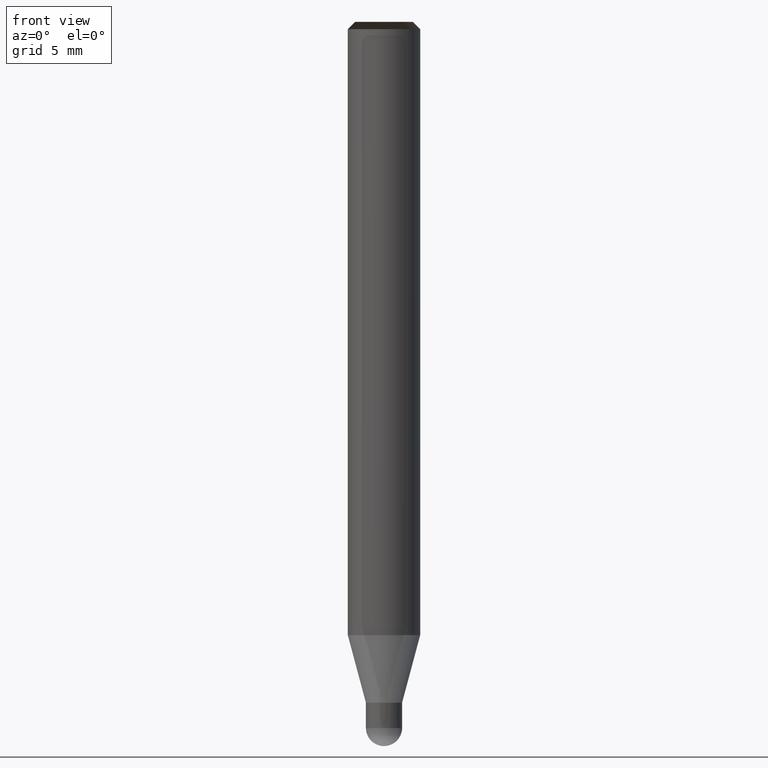
[diagram: clean part render]
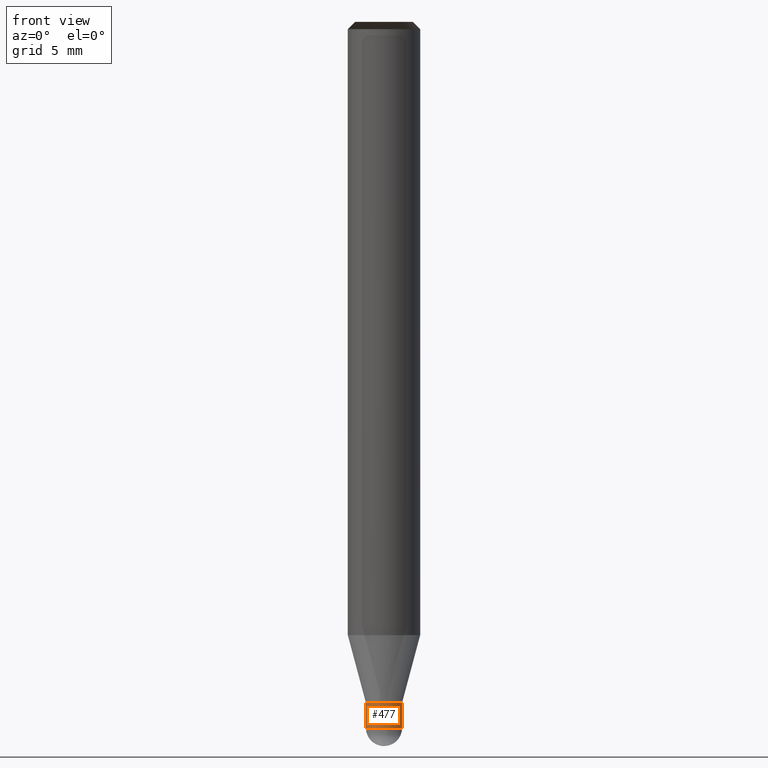
[diagram: same view with one face highlighted and labeled with its STEP entity id]
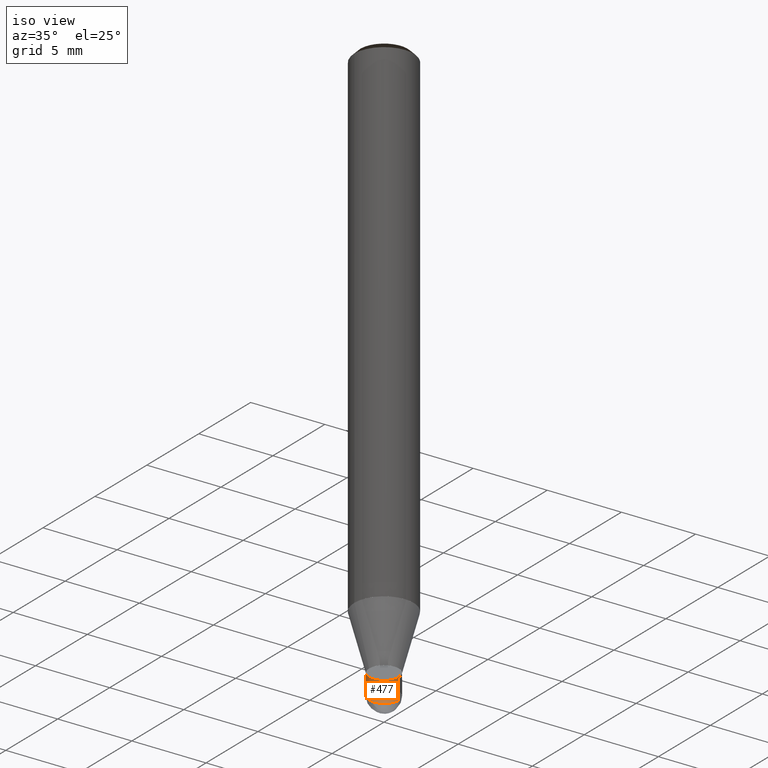
[diagram: same view with one face highlighted and labeled with its STEP entity id]
A machine part, front view. The second image highlights one B-rep face of the part: STEP entity #477.
A second angle (iso view) of the same face is appended — the face is thin or edge-on in the first view.
In plain terms, the highlighted face is a freeform B-spline surface patch.
Its self-contained STEP definition (entity closure, byte-faithful):
#338=CARTESIAN_POINT('',(1.0,0.0,-5.132050807569));
#342=CARTESIAN_POINT('',(-1.0,0.0,-5.132050807569));
#343=CARTESIAN_POINT('',(1.0,0.0,-3.732050807569));
#347=CARTESIAN_POINT('',(-1.0,0.0,-3.732050807569));
#352=CARTESIAN_POINT('',(-1.0,-1.0,-5.132050807569));
#353=CARTESIAN_POINT('',(0.0,-1.0,-5.132050807569));
#354=CARTESIAN_POINT('',(1.0,-1.0,-5.132050807569));
#355=CARTESIAN_POINT('',(-1.0,-1.0,-3.732050807569));
#356=CARTESIAN_POINT('',(0.0,-1.0,-3.732050807569));
#357=CARTESIAN_POINT('',(1.0,-1.0,-3.732050807569));
#458=(
BOUNDED_SURFACE()
B_SPLINE_SURFACE(1,2,(
(#342,#352,#353,#354,#338),
(#347,#355,#356,#357,#343)
), .UNSPECIFIED.,.F.,.F.,.F.)
B_SPLINE_SURFACE_WITH_KNOTS((2,2),(3,2,3),(
0.0,1.0),(
0.0,0.5,1.0), .UNSPECIFIED.)
GEOMETRIC_REPRESENTATION_ITEM()
RATIONAL_B_SPLINE_SURFACE(((1.0,0.707106781187,1.0,0.707106781187,1.0),
(1.0,0.707106781187,1.0,0.707106781187,1.0)
))
REPRESENTATION_ITEM('')
SURFACE()
);
#459=(
BOUNDED_CURVE()
B_SPLINE_CURVE(1,(#347,#342),.UNSPECIFIED.,.F.,.F.)
B_SPLINE_CURVE_WITH_KNOTS((2,2),
(0.0,1.0),.UNSPECIFIED.)
CURVE()
GEOMETRIC_REPRESENTATION_ITEM()
RATIONAL_B_SPLINE_CURVE((1.0,1.0))
REPRESENTATION_ITEM('')
);
#460=(
BOUNDED_CURVE()
B_SPLINE_CURVE(2,(#342,#352,#353,#354,#338),.UNSPECIFIED.,.F.,.F.)
B_SPLINE_CURVE_WITH_KNOTS((3,2,3),
(0.0,0.5,1.0),.UNSPECIFIED.)
CURVE()
GEOMETRIC_REPRESENTATION_ITEM()
RATIONAL_B_SPLINE_CURVE((1.0,0.707106781187,1.0,0.707106781187,1.0))
REPRESENTATION_ITEM('')
);
#461=(
BOUNDED_CURVE()
B_SPLINE_CURVE(1,(#338,#343),.UNSPECIFIED.,.F.,.F.)
B_SPLINE_CURVE_WITH_KNOTS((2,2),
(0.0,1.0),.UNSPECIFIED.)
CURVE()
GEOMETRIC_REPRESENTATION_ITEM()
RATIONAL_B_SPLINE_CURVE((1.0,1.0))
REPRESENTATION_ITEM('')
);
#462=(
BOUNDED_CURVE()
B_SPLINE_CURVE(2,(#343,#357,#356,#355,#347),.UNSPECIFIED.,.F.,.F.)
B_SPLINE_CURVE_WITH_KNOTS((3,2,3),
(0.0,0.5,1.0),.UNSPECIFIED.)
CURVE()
GEOMETRIC_REPRESENTATION_ITEM()
RATIONAL_B_SPLINE_CURVE((1.0,0.707106781187,1.0,0.707106781187,1.0))
REPRESENTATION_ITEM('')
);
#463=VERTEX_POINT('',#338);
#464=VERTEX_POINT('',#342);
#465=VERTEX_POINT('',#343);
#466=VERTEX_POINT('',#347);
#467=EDGE_CURVE('',#466,#464,#459,.T.);
#468=EDGE_CURVE('',#464,#463,#460,.T.);
#469=EDGE_CURVE('',#463,#465,#461,.T.);
#470=EDGE_CURVE('',#465,#466,#462,.T.);
#471=ORIENTED_EDGE('',*,*,#467,.T.);
#472=ORIENTED_EDGE('',*,*,#468,.T.);
#473=ORIENTED_EDGE('',*,*,#469,.T.);
#474=ORIENTED_EDGE('',*,*,#470,.T.);
#475=EDGE_LOOP('',(#471,#472,#473,#474));
#476=FACE_OUTER_BOUND('',#475,.T.);
#477=ADVANCED_FACE('',(#476),#458,.T.);